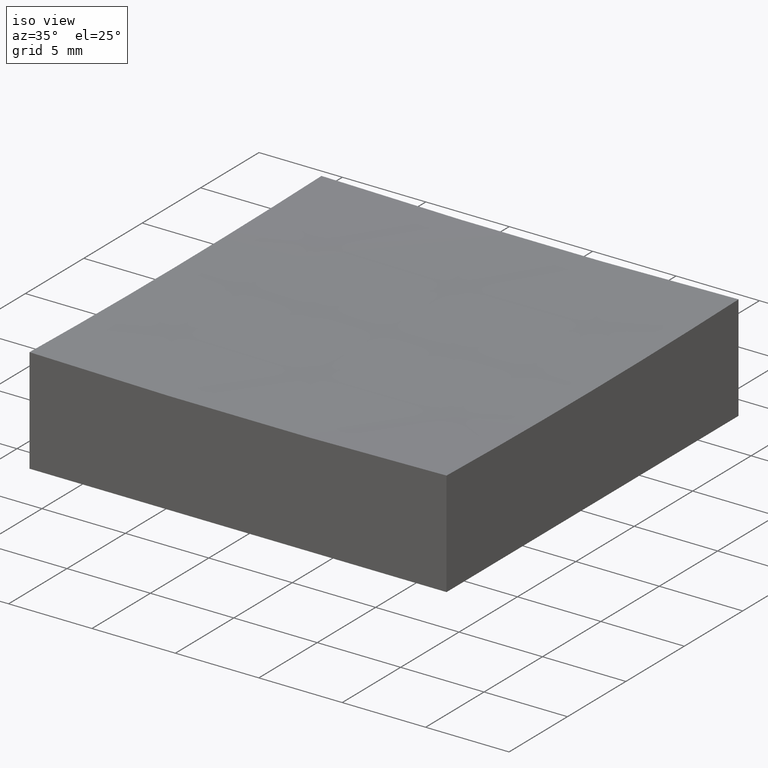
[diagram: clean part render]
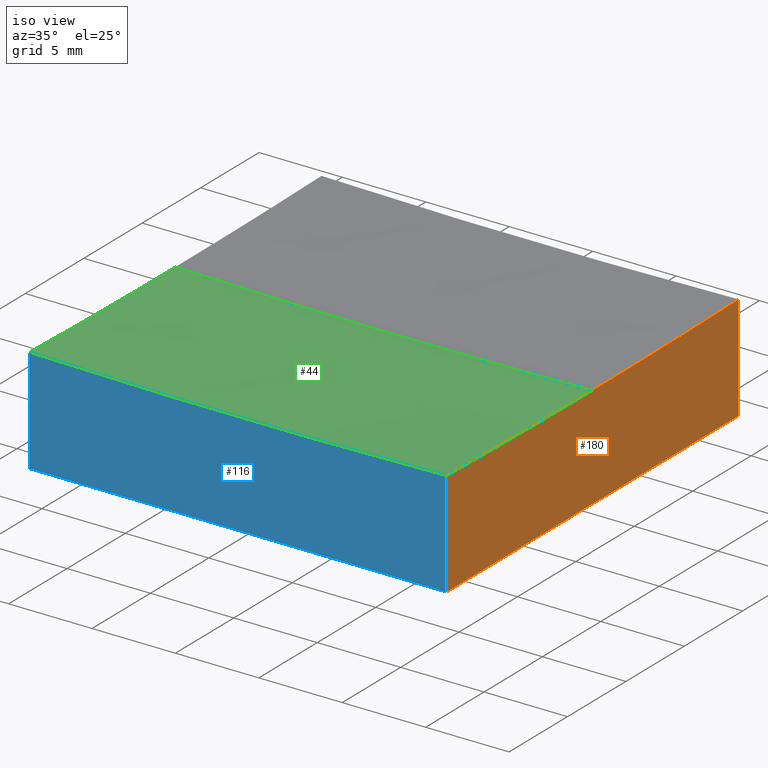
[diagram: same view with three faces highlighted in distinct colors, each labeled with its STEP entity id]
A machine part, iso view with three faces highlighted in distinct colors.
Their STEP definitions:

[orange] entity #180 — the highlighted planar face has unit normal (1, 0, -0).
#11 = DIRECTION ( 'NONE',  ( -1.388212665044284229E-16, 1.000000000000000000, 0.0000000000000000000 ) ) ;
#13 = AXIS2_PLACEMENT_3D ( 'NONE', #205, #169, #11 ) ;
#15 = DIRECTION ( 'NONE',  ( -1.388212665044284229E-16, 1.000000000000000000, 0.0000000000000000000 ) ) ;
#20 = ORIENTED_EDGE ( 'NONE', *, *, #160, .F. ) ;
#21 = CIRCLE ( 'NONE', #199, 499.8437255783051683 ) ;
#23 = VERTEX_POINT ( 'NONE', #75 ) ;
#24 = CARTESIAN_POINT ( 'NONE',  ( 12.50000000000000355, -12.50000000000000000, 20.00000000000000000 ) ) ;
#26 = VECTOR ( 'NONE', #149, 1000.000000000000000 ) ;
#27 = CARTESIAN_POINT ( 'NONE',  ( 12.50000000000000000, 12.50000000000000000, 0.0000000000000000000 ) ) ;
#35 = VERTEX_POINT ( 'NONE', #157 ) ;
#40 = EDGE_CURVE ( 'NONE', #35, #215, #232, .T. ) ;
#43 = CARTESIAN_POINT ( 'NONE',  ( 12.50000000000000178, 1.734723475976798811E-15, 506.0000000000000000 ) ) ;
#58 = CARTESIAN_POINT ( 'NONE',  ( 12.50000000000000000, 12.50000000000000000, 20.00000000000000000 ) ) ;
#59 = ORIENTED_EDGE ( 'NONE', *, *, #188, .F. ) ;
#60 = ORIENTED_EDGE ( 'NONE', *, *, #168, .F. ) ;
#69 = DIRECTION ( 'NONE',  ( -1.387778780781445676E-16, 1.000000000000000000, 0.0000000000000000000 ) ) ;
#75 = CARTESIAN_POINT ( 'NONE',  ( 12.50000000000000355, -12.50000000000000000, 0.0000000000000000000 ) ) ;
#77 = EDGE_CURVE ( 'NONE', #161, #23, #200, .T. ) ;
#89 = CIRCLE ( 'NONE', #13, 499.8437255783051683 ) ;
#102 = ORIENTED_EDGE ( 'NONE', *, *, #77, .T. ) ;
#109 = FACE_OUTER_BOUND ( 'NONE', #209, .T. ) ;
#111 = LINE ( 'NONE', #27, #26 ) ;
#114 = VERTEX_POINT ( 'NONE', #134 ) ;
#117 = ORIENTED_EDGE ( 'NONE', *, *, #40, .F. ) ;
#126 = VECTOR ( 'NONE', #138, 1000.000000000000000 ) ;
#130 = DIRECTION ( 'NONE',  ( 1.000000000000000000, 1.387778780781445676E-16, -0.0000000000000000000 ) ) ;
#134 = CARTESIAN_POINT ( 'NONE',  ( 12.50000000000000178, 9.629649721936179265E-32, 6.156274421694862831 ) ) ;
#138 = DIRECTION ( 'NONE',  ( -0.0000000000000000000, -0.0000000000000000000, -1.000000000000000000 ) ) ;
#149 = DIRECTION ( 'NONE',  ( 1.387778780781445676E-16, -1.000000000000000000, 0.0000000000000000000 ) ) ;
#150 = CARTESIAN_POINT ( 'NONE',  ( 12.50000000000000000, 12.50000000000000000, 0.0000000000000000000 ) ) ;
#157 = CARTESIAN_POINT ( 'NONE',  ( 12.50000000000000000, 12.50000000000000000, 6.312597717332835145 ) ) ;
#160 = EDGE_CURVE ( 'NONE', #161, #114, #21, .T. ) ;
#161 = VERTEX_POINT ( 'NONE', #225 ) ;
#168 = EDGE_CURVE ( 'NONE', #114, #35, #89, .T. ) ;
#169 = DIRECTION ( 'NONE',  ( 1.000000000000000000, 1.387778780781445676E-16, -0.0000000000000000000 ) ) ;
#180 = ADVANCED_FACE ( 'NONE', ( #109 ), #243, .T. ) ;
#183 = VECTOR ( 'NONE', #238, 1000.000000000000000 ) ;
#188 = EDGE_CURVE ( 'NONE', #215, #23, #111, .T. ) ;
#189 = DIRECTION ( 'NONE',  ( 1.000000000000000000, 1.387778780781445676E-16, -0.0000000000000000000 ) ) ;
#199 = AXIS2_PLACEMENT_3D ( 'NONE', #43, #189, #15 ) ;
#200 = LINE ( 'NONE', #24, #183 ) ;
#205 = CARTESIAN_POINT ( 'NONE',  ( 12.50000000000000178, 1.734723475976798811E-15, 506.0000000000000000 ) ) ;
#208 = AXIS2_PLACEMENT_3D ( 'NONE', #224, #130, #69 ) ;
#209 = EDGE_LOOP ( 'NONE', ( #20, #102, #59, #117, #60 ) ) ;
#215 = VERTEX_POINT ( 'NONE', #150 ) ;
#224 = CARTESIAN_POINT ( 'NONE',  ( 12.50000000000000000, 12.50000000000000000, 20.00000000000000000 ) ) ;
#225 = CARTESIAN_POINT ( 'NONE',  ( 12.50000000000000355, -12.50000000000000000, 6.312597717332835145 ) ) ;
#232 = LINE ( 'NONE', #58, #126 ) ;
#238 = DIRECTION ( 'NONE',  ( -0.0000000000000000000, -0.0000000000000000000, -1.000000000000000000 ) ) ;
#243 = PLANE ( 'NONE',  #208 ) ;

[blue] entity #116 — the highlighted planar face has unit normal (0, 1, 0).
#5 = EDGE_LOOP ( 'NONE', ( #184, #37, #93, #158 ) ) ;
#10 = CARTESIAN_POINT ( 'NONE',  ( -12.49999999999999645, -12.50000000000000000, 0.0000000000000000000 ) ) ;
#23 = VERTEX_POINT ( 'NONE', #75 ) ;
#24 = CARTESIAN_POINT ( 'NONE',  ( 12.50000000000000355, -12.50000000000000000, 20.00000000000000000 ) ) ;
#36 = AXIS2_PLACEMENT_3D ( 'NONE', #192, #221, #129 ) ;
#37 = ORIENTED_EDGE ( 'NONE', *, *, #237, .T. ) ;
#46 = DIRECTION ( 'NONE',  ( -0.0000000000000000000, -0.0000000000000000000, -1.000000000000000000 ) ) ;
#67 = LINE ( 'NONE', #87, #100 ) ;
#70 = LINE ( 'NONE', #10, #244 ) ;
#74 = FACE_OUTER_BOUND ( 'NONE', #5, .T. ) ;
#75 = CARTESIAN_POINT ( 'NONE',  ( 12.50000000000000355, -12.50000000000000000, 0.0000000000000000000 ) ) ;
#77 = EDGE_CURVE ( 'NONE', #161, #23, #200, .T. ) ;
#83 = CARTESIAN_POINT ( 'NONE',  ( -12.49999999999999645, -12.50000000000000000, 20.00000000000000000 ) ) ;
#87 = CARTESIAN_POINT ( 'NONE',  ( -12.49999999999999645, -12.50000000000000000, 20.00000000000000000 ) ) ;
#91 = DIRECTION ( 'NONE',  ( 0.0000000000000000000, 1.000000000000000000, 0.0000000000000000000 ) ) ;
#93 = ORIENTED_EDGE ( 'NONE', *, *, #137, .T. ) ;
#100 = VECTOR ( 'NONE', #46, 1000.000000000000000 ) ;
#113 = CARTESIAN_POINT ( 'NONE',  ( -12.49999999999999645, -12.50000000000000000, 6.312597717332835145 ) ) ;
#116 = ADVANCED_FACE ( 'NONE', ( #74 ), #195, .F. ) ;
#129 = DIRECTION ( 'NONE',  ( 0.0000000000000000000, 0.0000000000000000000, 1.000000000000000000 ) ) ;
#131 = DIRECTION ( 'NONE',  ( 0.0000000000000000000, -0.0000000000000000000, 1.000000000000000000 ) ) ;
#137 = EDGE_CURVE ( 'NONE', #141, #142, #67, .T. ) ;
#141 = VERTEX_POINT ( 'NONE', #113 ) ;
#142 = VERTEX_POINT ( 'NONE', #190 ) ;
#151 = EDGE_CURVE ( 'NONE', #142, #23, #70, .T. ) ;
#154 = CIRCLE ( 'NONE', #36, 499.8437255783050546 ) ;
#158 = ORIENTED_EDGE ( 'NONE', *, *, #151, .T. ) ;
#159 = AXIS2_PLACEMENT_3D ( 'NONE', #83, #91, #131 ) ;
#161 = VERTEX_POINT ( 'NONE', #225 ) ;
#175 = DIRECTION ( 'NONE',  ( 1.000000000000000000, 0.0000000000000000000, 0.0000000000000000000 ) ) ;
#183 = VECTOR ( 'NONE', #238, 1000.000000000000000 ) ;
#184 = ORIENTED_EDGE ( 'NONE', *, *, #77, .F. ) ;
#190 = CARTESIAN_POINT ( 'NONE',  ( -12.49999999999999645, -12.50000000000000000, 0.0000000000000000000 ) ) ;
#192 = CARTESIAN_POINT ( 'NONE',  ( 6.196712803685608594E-14, -12.50000000000000000, 506.0000000000000000 ) ) ;
#195 = PLANE ( 'NONE',  #159 ) ;
#200 = LINE ( 'NONE', #24, #183 ) ;
#221 = DIRECTION ( 'NONE',  ( 0.0000000000000000000, 1.000000000000000000, 0.0000000000000000000 ) ) ;
#225 = CARTESIAN_POINT ( 'NONE',  ( 12.50000000000000355, -12.50000000000000000, 6.312597717332835145 ) ) ;
#237 = EDGE_CURVE ( 'NONE', #161, #141, #154, .T. ) ;
#238 = DIRECTION ( 'NONE',  ( -0.0000000000000000000, -0.0000000000000000000, -1.000000000000000000 ) ) ;
#244 = VECTOR ( 'NONE', #175, 1000.000000000000000 ) ;

[green] entity #44 — the highlighted spherical surface has radius 500 mm.
#1 = VERTEX_POINT ( 'NONE', #166 ) ;
#2 = AXIS2_PLACEMENT_3D ( 'NONE', #140, #156, #214 ) ;
#3 = ORIENTED_EDGE ( 'NONE', *, *, #14, .T. ) ;
#4 = EDGE_LOOP ( 'NONE', ( #143, #3, #162, #249, #235 ) ) ;
#14 = EDGE_CURVE ( 'NONE', #85, #1, #110, .T. ) ;
#15 = DIRECTION ( 'NONE',  ( -1.388212665044284229E-16, 1.000000000000000000, 0.0000000000000000000 ) ) ;
#21 = CIRCLE ( 'NONE', #199, 499.8437255783051683 ) ;
#30 = DIRECTION ( 'NONE',  ( 1.000000000000000000, 1.387778780781445676E-16, -0.0000000000000000000 ) ) ;
#31 = SPHERICAL_SURFACE ( 'NONE', #2, 500.0000000000000000 ) ;
#36 = AXIS2_PLACEMENT_3D ( 'NONE', #192, #221, #129 ) ;
#43 = CARTESIAN_POINT ( 'NONE',  ( 12.50000000000000178, 1.734723475976798811E-15, 506.0000000000000000 ) ) ;
#44 = ADVANCED_FACE ( 'NONE', ( #211 ), #31, .F. ) ;
#45 = CARTESIAN_POINT ( 'NONE',  ( 6.196712803685608594E-14, 0.0000000000000000000, 506.0000000000000000 ) ) ;
#47 = DIRECTION ( 'NONE',  ( 0.0000000000000000000, 0.0000000000000000000, -1.000000000000000000 ) ) ;
#80 = AXIS2_PLACEMENT_3D ( 'NONE', #45, #88, #47 ) ;
#85 = VERTEX_POINT ( 'NONE', #104 ) ;
#88 = DIRECTION ( 'NONE',  ( 0.0000000000000000000, -1.000000000000000000, -0.0000000000000000000 ) ) ;
#98 = CARTESIAN_POINT ( 'NONE',  ( 6.196712803685608594E-14, 0.0000000000000000000, 506.0000000000000000 ) ) ;
#104 = CARTESIAN_POINT ( 'NONE',  ( 3.271569539582041015E-14, 0.0000000000000000000, 6.000000000000005329 ) ) ;
#110 = CIRCLE ( 'NONE', #233, 500.0000000000000000 ) ;
#112 = EDGE_CURVE ( 'NONE', #141, #1, #176, .T. ) ;
#113 = CARTESIAN_POINT ( 'NONE',  ( -12.49999999999999645, -12.50000000000000000, 6.312597717332835145 ) ) ;
#114 = VERTEX_POINT ( 'NONE', #134 ) ;
#119 = DIRECTION ( 'NONE',  ( 1.224646799147353207E-16, 1.000000000000000000, -1.466333358417303786E-32 ) ) ;
#129 = DIRECTION ( 'NONE',  ( 0.0000000000000000000, 0.0000000000000000000, 1.000000000000000000 ) ) ;
#134 = CARTESIAN_POINT ( 'NONE',  ( 12.50000000000000178, 9.629649721936179265E-32, 6.156274421694862831 ) ) ;
#140 = CARTESIAN_POINT ( 'NONE',  ( 6.196712803685608594E-14, 0.0000000000000000000, 506.0000000000000000 ) ) ;
#141 = VERTEX_POINT ( 'NONE', #113 ) ;
#143 = ORIENTED_EDGE ( 'NONE', *, *, #218, .F. ) ;
#154 = CIRCLE ( 'NONE', #36, 499.8437255783050546 ) ;
#156 = DIRECTION ( 'NONE',  ( 0.0000000000000000000, 1.000000000000000000, 0.0000000000000000000 ) ) ;
#160 = EDGE_CURVE ( 'NONE', #161, #114, #21, .T. ) ;
#161 = VERTEX_POINT ( 'NONE', #225 ) ;
#162 = ORIENTED_EDGE ( 'NONE', *, *, #112, .F. ) ;
#166 = CARTESIAN_POINT ( 'NONE',  ( -12.49999999999999822, 1.530808498934191127E-15, 6.156274421694862831 ) ) ;
#172 = CIRCLE ( 'NONE', #80, 500.0000000000000000 ) ;
#176 = CIRCLE ( 'NONE', #229, 499.8437255783051683 ) ;
#181 = CARTESIAN_POINT ( 'NONE',  ( -12.49999999999999822, -1.734723475976815575E-15, 506.0000000000000000 ) ) ;
#189 = DIRECTION ( 'NONE',  ( 1.000000000000000000, 1.387778780781445676E-16, -0.0000000000000000000 ) ) ;
#192 = CARTESIAN_POINT ( 'NONE',  ( 6.196712803685608594E-14, -12.50000000000000000, 506.0000000000000000 ) ) ;
#194 = DIRECTION ( 'NONE',  ( -1.388212665044284229E-16, 1.000000000000000000, 0.0000000000000000000 ) ) ;
#199 = AXIS2_PLACEMENT_3D ( 'NONE', #43, #189, #15 ) ;
#211 = FACE_OUTER_BOUND ( 'NONE', #4, .T. ) ;
#213 = DIRECTION ( 'NONE',  ( -1.000000000000000000, 1.224646799147353207E-16, 0.0000000000000000000 ) ) ;
#214 = DIRECTION ( 'NONE',  ( 1.000000000000000000, 0.0000000000000000000, -2.220446049250313081E-16 ) ) ;
#218 = EDGE_CURVE ( 'NONE', #85, #114, #172, .T. ) ;
#221 = DIRECTION ( 'NONE',  ( 0.0000000000000000000, 1.000000000000000000, 0.0000000000000000000 ) ) ;
#225 = CARTESIAN_POINT ( 'NONE',  ( 12.50000000000000355, -12.50000000000000000, 6.312597717332835145 ) ) ;
#229 = AXIS2_PLACEMENT_3D ( 'NONE', #181, #30, #194 ) ;
#233 = AXIS2_PLACEMENT_3D ( 'NONE', #98, #119, #213 ) ;
#235 = ORIENTED_EDGE ( 'NONE', *, *, #160, .T. ) ;
#237 = EDGE_CURVE ( 'NONE', #161, #141, #154, .T. ) ;
#249 = ORIENTED_EDGE ( 'NONE', *, *, #237, .F. ) ;